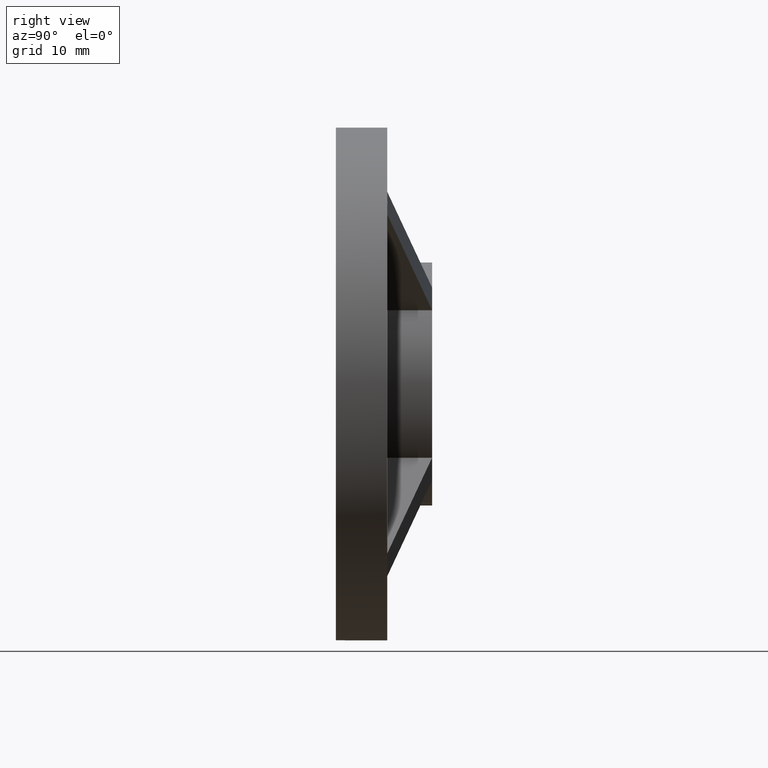
[diagram: clean part render]
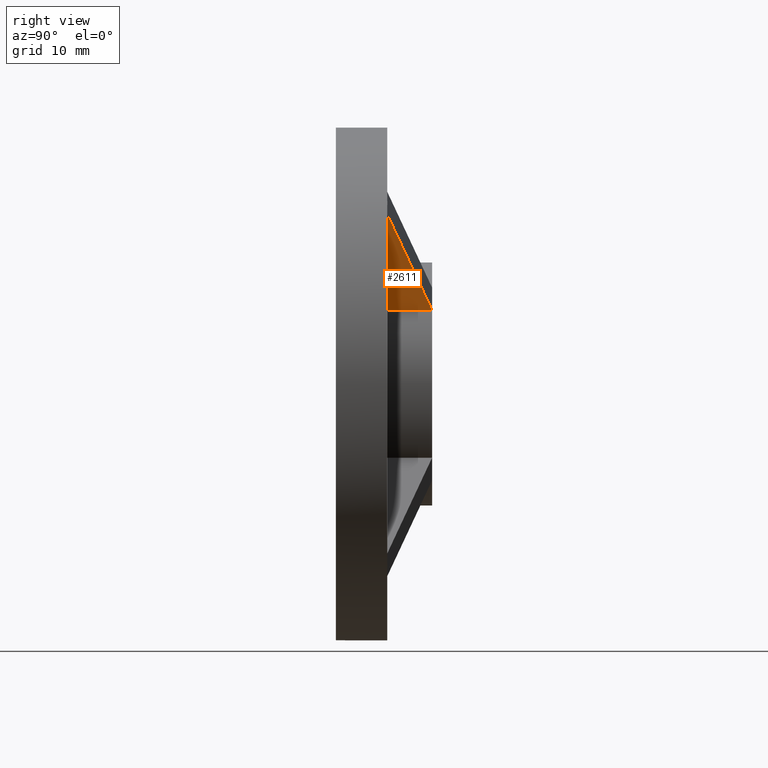
[diagram: same view with one face highlighted and labeled with its STEP entity id]
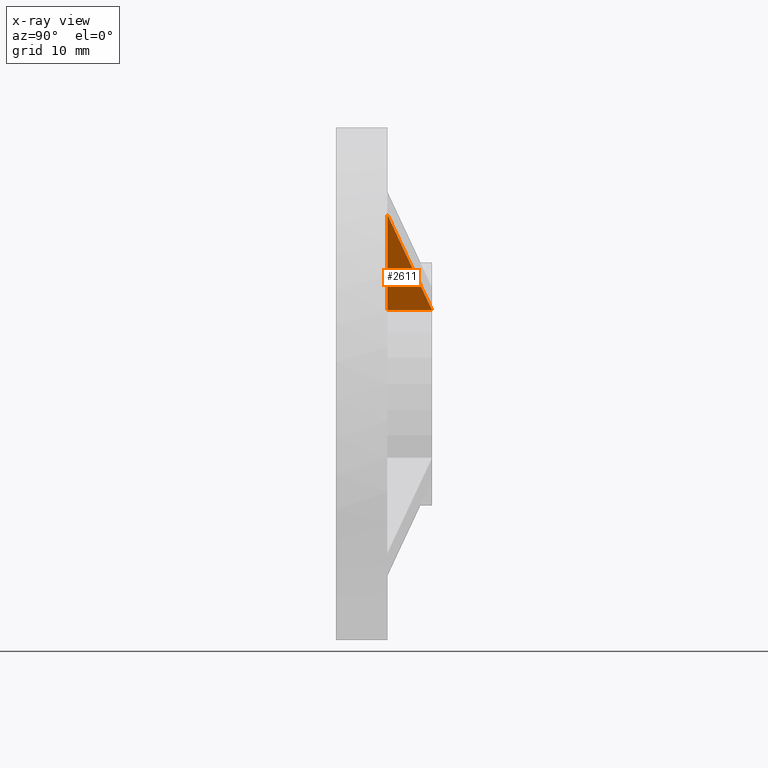
[diagram: x-ray of the same camera — body ghosted, the highlighted face saturated]
A machine part, right view. The second image highlights one B-rep face of the part: STEP entity #2611.
The next image is the same camera in x-ray: the body ghosted, the highlighted face saturated — about 0% of this face is hidden behind the body in this view.
In plain terms, the highlighted planar face has unit normal (-0.7071, 0, 0.7071).
Its self-contained STEP definition (entity closure, byte-faithful):
#307 = CARTESIAN_POINT ( 'NONE',  ( 15.05032130068124552, 41.13743005518215057, 11.51478739474855395 ) ) ;
#548 = LINE ( 'NONE', #5511, #10805 ) ;
#586 = FACE_OUTER_BOUND ( 'NONE', #7709, .T. ) ;
#1265 = ORIENTED_EDGE ( 'NONE', *, *, #5536, .T. ) ;
#1609 = LINE ( 'NONE', #4585, #6829 ) ;
#2158 = DIRECTION ( 'NONE',  ( 0.7071067811865465735, 0.000000000000000000, 0.7071067811865483499 ) ) ;
#2505 = VERTEX_POINT ( 'NONE', #7922 ) ;
#2611 = ADVANCED_FACE ( 'NONE', ( #586 ), #8123, .F. ) ;
#2890 = DIRECTION ( 'NONE',  ( -0.000000000000000000, -1.000000000000000000, -0.000000000000000000 ) ) ;
#2974 = ORIENTED_EDGE ( 'NONE', *, *, #12062, .F. ) ;
#3288 = AXIS2_PLACEMENT_3D ( 'NONE', #307, #11057, #2158 ) ;
#4585 = CARTESIAN_POINT ( 'NONE',  ( 15.05032130068124552, 41.13743005518215057, 11.51478739474855395 ) ) ;
#5511 = CARTESIAN_POINT ( 'NONE',  ( 9.534635549438888802, 17.58321390177602694, 5.999101643506182135 ) ) ;
#5536 = EDGE_CURVE ( 'NONE', #2505, #9724, #9470, .T. ) ;
#6223 = VECTOR ( 'NONE', #11792, 1000.000000000000114 ) ;
#6829 = VECTOR ( 'NONE', #2890, 1000.000000000000000 ) ;
#7709 = EDGE_LOOP ( 'NONE', ( #2974, #9734, #1265 ) ) ;
#7922 = CARTESIAN_POINT ( 'NONE',  ( 29.99674142955688438, 8.000000000000000000, 26.46120752362420703 ) ) ;
#8123 = PLANE ( 'NONE',  #3288 ) ;
#8910 = CARTESIAN_POINT ( 'NONE',  ( 15.05032130068125973, 15.00000000000000000, 11.51478739474854329 ) ) ;
#9470 = LINE ( 'NONE', #9951, #6223 ) ;
#9724 = VERTEX_POINT ( 'NONE', #12312 ) ;
#9734 = ORIENTED_EDGE ( 'NONE', *, *, #10803, .T. ) ;
#9951 = CARTESIAN_POINT ( 'NONE',  ( 15.05032130068124552, 8.000000000000000000, 11.51478739474855395 ) ) ;
#10371 = DIRECTION ( 'NONE',  ( 0.6712555483563770187, -0.3143755359463533683, 0.6712555483563785730 ) ) ;
#10803 = EDGE_CURVE ( 'NONE', #11512, #2505, #548, .T. ) ;
#10805 = VECTOR ( 'NONE', #10371, 1000.000000000000227 ) ;
#11057 = DIRECTION ( 'NONE',  ( -0.7071067811865484609, 0.000000000000000000, 0.7071067811865466846 ) ) ;
#11512 = VERTEX_POINT ( 'NONE', #8910 ) ;
#11792 = DIRECTION ( 'NONE',  ( -0.7071067811865465735, -0.000000000000000000, -0.7071067811865483499 ) ) ;
#12062 = EDGE_CURVE ( 'NONE', #11512, #9724, #1609, .T. ) ;
#12312 = CARTESIAN_POINT ( 'NONE',  ( 15.05032130068124552, 8.000000000000000000, 11.51478739474855395 ) ) ;